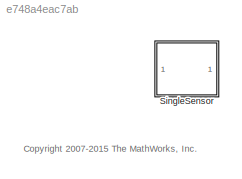
MODEL slx_e748a4eac7ab
KIND library
CONFIG AbsTol = auto
CONFIG EnableMultiTasking = on
CONFIG FixedStep = auto
CONFIG MaxStep = auto
CONFIG MinStep = auto
CONFIG RelTol = 1e-3
CONFIG SampleTimeConstraint = Unconstrained
CONFIG Solver = ode45
CONFIG SolverName = ode45
CONFIG StartTime = 0.0
CONFIG StopTime = 10.0
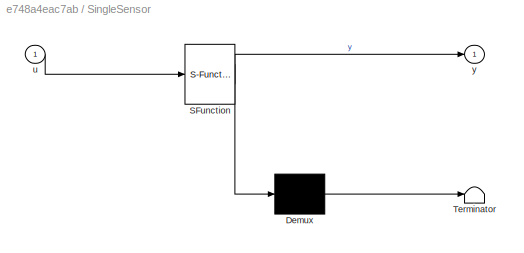
BLOCK [SubSystem] SingleSensor
  ErrorFcn = Stateflow.Translate.translate
  PermitHierarchicalResolution = ExplicitOnly
  Ports = [1, 1]
  RequestExecContextInheritance = off
  SFBlockType = Chart
  TreatAsAtomicUnit = on
  Variant = off
BLOCK [Demux] SingleSensor/ Demux 
  Outputs = 1
  Ports = [1, 1]
BLOCK [S-Function] SingleSensor/ SFunction 
  EnableBusSupport = off
  FunctionName = sf_sfun
  Parameters = HIGH,LOW
  PortCounts = [1 2]
  Ports = [1, 2]
  SFcnIsStateOwnerBlock = off
  SFunctionDeploymentMode = off
  Tag = Stateflow S-Function sf_atomic_sensor_lib 1
BLOCK [Terminator] SingleSensor/ Terminator 
BLOCK [Inport] SingleSensor/u
  IconDisplay = Port number
BLOCK [Outport] SingleSensor/y
  IconDisplay = Port number
ANNOTATION (root): <copyright redacted>
CHART SingleSensor states=5 transitions=6
  STATE_LABEL 'Fail\nen, du: y = 0;'
  STATE_LABEL 'OK\nen, du: y = u;'
  STATE_LABEL 'FailOnce'
  STATE_LABEL 'yn = readingOK'
  STATE_LABEL '{yn = (u > LOW && u < HIGH);}'
  STATE_LABEL 'yn = inFailed'
  STATE_LABEL '{yn = in(Fail);}'
